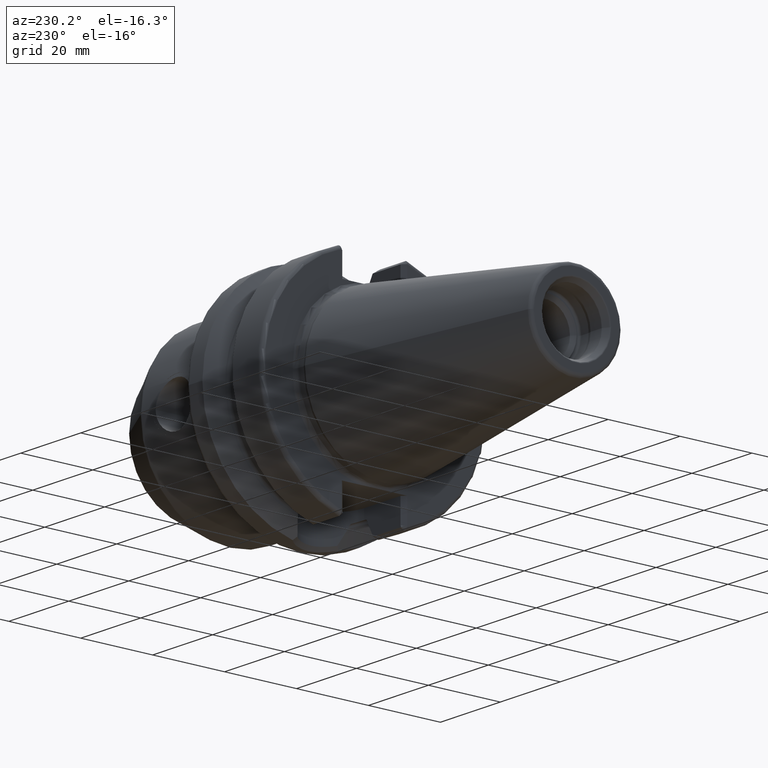
[diagram: clean part render]
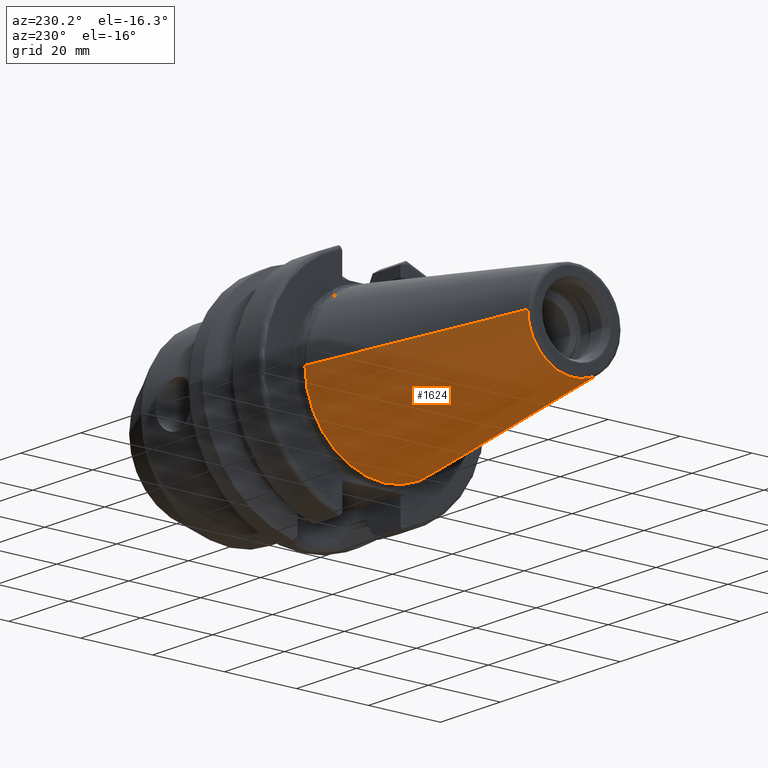
[diagram: same view with one face highlighted and labeled with its STEP entity id]
A machine part, auxiliary view. The second image highlights one B-rep face of the part: STEP entity #1624.
In plain terms, the highlighted conical surface has half-angle 8.298 deg.
Its self-contained STEP definition (entity closure, byte-faithful):
#32=CARTESIAN_POINT('',(-6.454431866917E1,0.E0,0.E0));
#33=DIRECTION('',(-1.E0,0.E0,0.E0));
#34=DIRECTION('',(0.E0,1.E0,0.E0));
#35=AXIS2_PLACEMENT_3D('',#32,#33,#34);
#47=DIRECTION('',(-9.895312636440E-1,-1.443186691705E-1,0.E0));
#48=VECTOR('',#47,6.394703124850E1);
#49=CARTESIAN_POINT('',(-1.266732031557E0,2.204025284980E1,0.E0));
#50=LINE('',#49,#48);
#51=DIRECTION('',(-9.895312636440E-1,1.443186691705E-1,0.E0));
#52=VECTOR('',#51,6.394703124850E1);
#53=CARTESIAN_POINT('',(-1.266732031557E0,-2.204025284980E1,0.E0));
#54=LINE('',#53,#52);
#55=CARTESIAN_POINT('',(-1.266732031557E0,0.E0,0.E0));
#56=DIRECTION('',(-1.E0,0.E0,0.E0));
#57=DIRECTION('',(0.E0,1.E0,0.E0));
#58=AXIS2_PLACEMENT_3D('',#55,#56,#57);
#1292=CARTESIAN_POINT('',(-6.454431866917E1,1.281150240261E1,0.E0));
#1294=VERTEX_POINT('',#1292);
#1296=CARTESIAN_POINT('',(-6.454431866917E1,-1.281150240261E1,0.E0));
#1298=VERTEX_POINT('',#1296);
#1511=CARTESIAN_POINT('',(-1.266732031557E0,2.204025284980E1,0.E0));
#1512=VERTEX_POINT('',#1511);
#1513=CARTESIAN_POINT('',(-1.266732031557E0,-2.204025284980E1,0.E0));
#1514=VERTEX_POINT('',#1513);
#1612=CARTESIAN_POINT('',(-3.290552535036E1,0.E0,0.E0));
#1613=DIRECTION('',(1.E0,0.E0,0.E0));
#1614=DIRECTION('',(0.E0,-1.E0,0.E0));
#1615=AXIS2_PLACEMENT_3D('',#1612,#1613,#1614);
#1616=CONICAL_SURFACE('',#1615,1.742587762621E1,8.297826828206E0);
#1617=ORIENTED_EDGE('',*,*,#1602,.T.);
#1618=ORIENTED_EDGE('',*,*,#1579,.T.);
#1619=ORIENTED_EDGE('',*,*,#1606,.F.);
#1621=ORIENTED_EDGE('',*,*,#1620,.F.);
#1622=EDGE_LOOP('',(#1617,#1618,#1619,#1621));
#1623=FACE_OUTER_BOUND('',#1622,.F.);
#1624=ADVANCED_FACE('',(#1623),#1616,.T.);
#36=CIRCLE('',#35,1.281150240261E1);
#59=CIRCLE('',#58,2.204025284980E1);
#1579=EDGE_CURVE('',#1294,#1298,#36,.T.);
#1602=EDGE_CURVE('',#1512,#1294,#50,.T.);
#1606=EDGE_CURVE('',#1514,#1298,#54,.T.);
#1620=EDGE_CURVE('',#1512,#1514,#59,.T.);